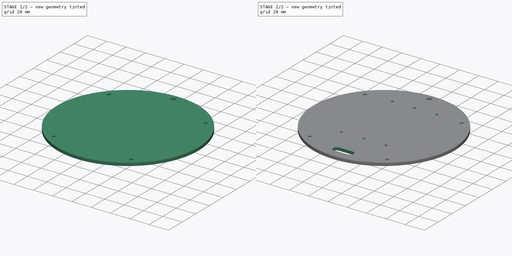
[diagram: build sequence overview — one tinted view per stage of 2, left to right]
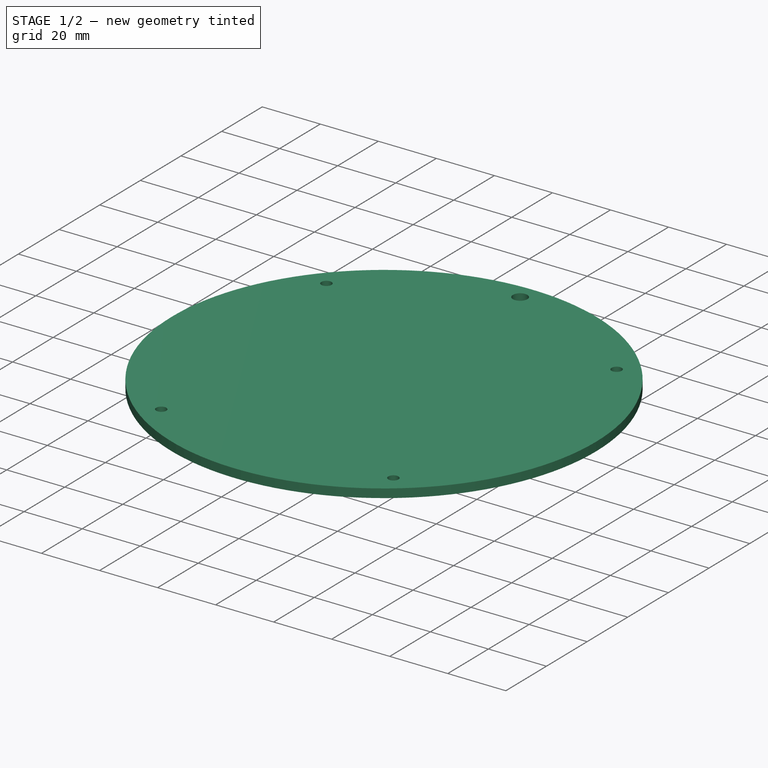
[diagram: stage 1 of 2 — iso view after this stage's code; geometry added in this stage tinted green]
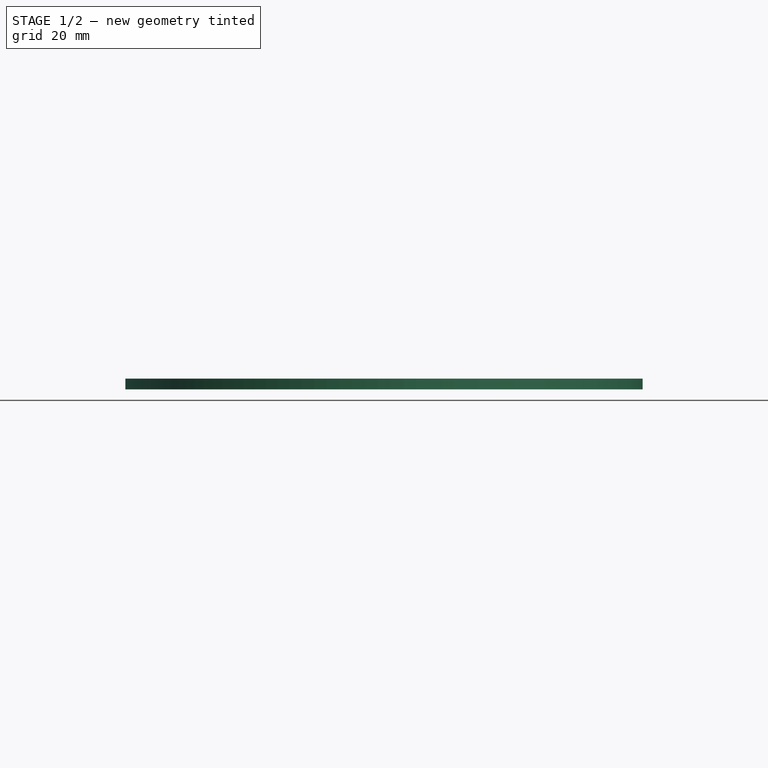
[diagram: stage 1 of 2 — front view after this stage's code; geometry added in this stage tinted green]
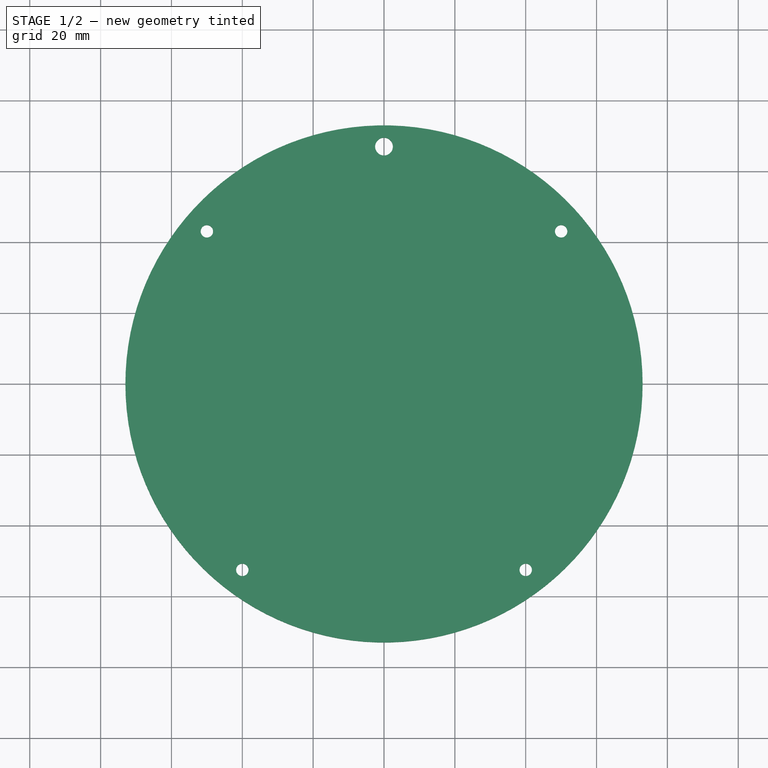
[diagram: stage 1 of 2 — top view after this stage's code; geometry added in this stage tinted green]
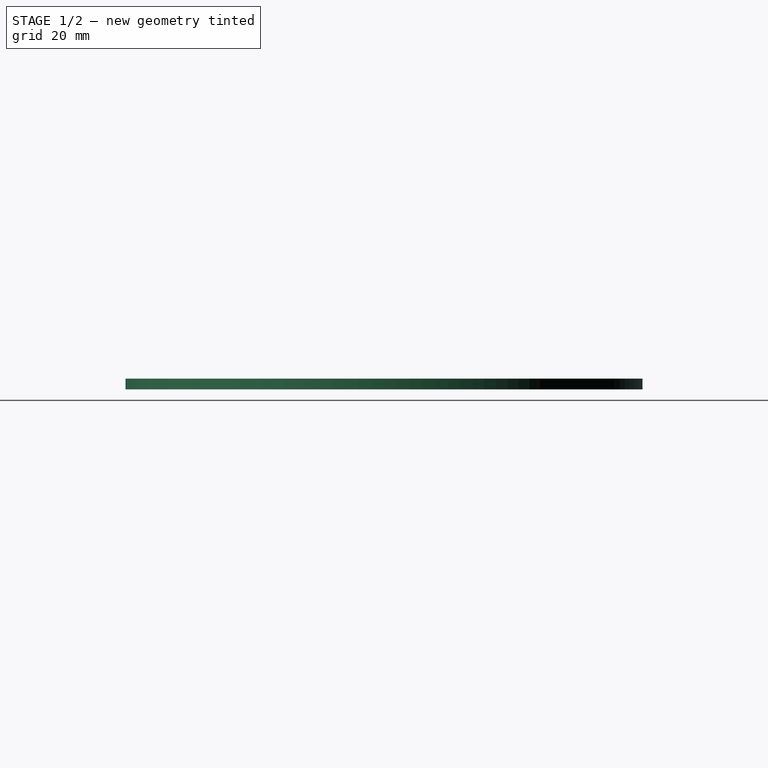
[diagram: stage 1 of 2 — right view after this stage's code; geometry added in this stage tinted green]
FCSTD DOCUMENT  (FreeCAD 0.17R13541 (Git))
Label: AB_battery-plate
License: All rights reserved
LicenseURL: http://en.wikipedia.org/wiki/All_rights_reserved
objects: Sketcher::SketchObject×3, PartDesign::Pocket×2, PartDesign::Pad×1, TechDraw::DrawSVGTemplate×1, PartDesign::Body×1, TechDraw::DrawViewPart×1, TechDraw::DrawPage×1
note: 10 computed .brp shape members not serialized (recipe doc carries the construction recipe); baked Part::Feature solids carry a one-line shape summary decoded from their .brp

FEATURE [Sketcher::SketchObject] Sketch
  MapMode = 5
  Support = -> [XY_Plane]
  sketch-geometry (2):
    g0: Circle CenterX=0 CenterY=0 CenterZ=0 NormalX=0 NormalY=0 NormalZ=1 AngleXU=0 Radius=73
    g1: Circle CenterX=0 CenterY=67 CenterZ=0 NormalX=0 NormalY=0 NormalZ=1 AngleXU=0 Radius=2.5
  constraints (4):
    c: Radius(g0) = 73
    c: PointOnObject(g1,g-2)
    c: Radius(g1) = 2.5
    c: DistanceY(g1) = 67
FEATURE [PartDesign::Pad] Pad
  Length = 3
  Length2 = 100
  Profile = -> Sketch
  Type = 0
FEATURE [TechDraw::DrawSVGTemplate] Template
  Height = 210
  Orientation = 1
  Width = 297
FEATURE [Sketcher::SketchObject] Sketch002
  MapMode = 5
  Placement = pos=(0,0,3) rot=(0,0,1;0rad)
  Support = -> [Pad]
  sketch-geometry (8):
    g0: Circle [constr] CenterX=0 CenterY=0 CenterZ=0 NormalX=0 NormalY=0 NormalZ=1 AngleXU=0 Radius=66
    g1: Circle CenterX=-40 CenterY=-52.4976 CenterZ=0 NormalX=0 NormalY=0 NormalZ=1 AngleXU=0 Radius=1.75
    g2: Circle CenterX=40 CenterY=-52.4976 CenterZ=0 NormalX=0 NormalY=0 NormalZ=1 AngleXU=0 Radius=1.75
    g3: Circle CenterX=-50 CenterY=43.0813 CenterZ=0 NormalX=0 NormalY=0 NormalZ=1 AngleXU=0 Radius=1.75
    g4: Circle CenterX=50 CenterY=43.0813 CenterZ=0 NormalX=0 NormalY=0 NormalZ=1 AngleXU=0 Radius=1.75
    g5: Circle [constr] CenterX=0 CenterY=0 CenterZ=0 NormalX=0 NormalY=0 NormalZ=1 AngleXU=0 Radius=71
    g6: Circle [constr] CenterX=0 CenterY=0 CenterZ=0 NormalX=0 NormalY=0 NormalZ=1 AngleXU=0 Radius=73
    g7: Circle [constr] CenterX=50 CenterY=43.0813 CenterZ=0 NormalX=0 NormalY=0 NormalZ=1 AngleXU=0 Radius=5
  constraints (20):
    c: Coincident(g0,g-1)
    c: PointOnObject(g1,g0)
    c: PointOnObject(g2,g0)
    c: PointOnObject(g3,g0)
    c: PointOnObject(g4,g0)
    c: Equal(g3,g1)
    c: Equal(g1,g2)
    c: Equal(g2,g4)
    c: Horizontal(g3,g4)
    c: Horizontal(g1,g2)
    c: Radius(g4) = 1.75
    c: DistanceX(g3,g4) = 100
    c: Radius(g0) = 66
    c: DistanceX(g1,g2) = 80
    c: Coincident(g5,g-1)
    c: Coincident(g6,g-1)
    c: Radius(g6) = 73
    c: Radius(g5) = 71
    c: Coincident(g7,g4)
    c: Radius(g7) = 5
FEATURE [PartDesign::Pocket] Pocket
  BaseFeature = -> Pad
  Length = 5
  Length2 = 100
  Profile = -> Sketch002
  Type = 1
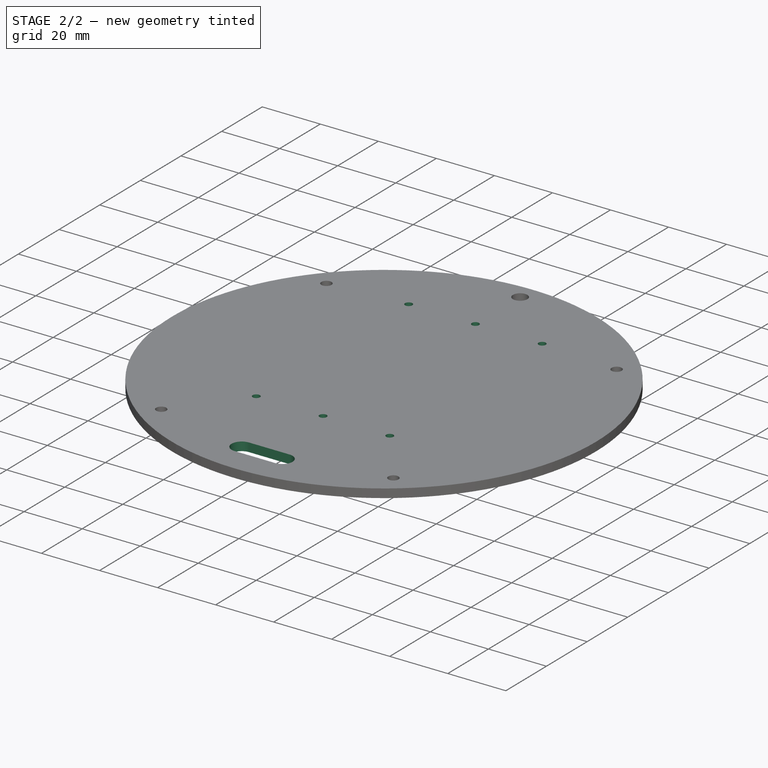
[diagram: stage 2 of 2 — iso view after this stage's code; geometry added in this stage tinted green]
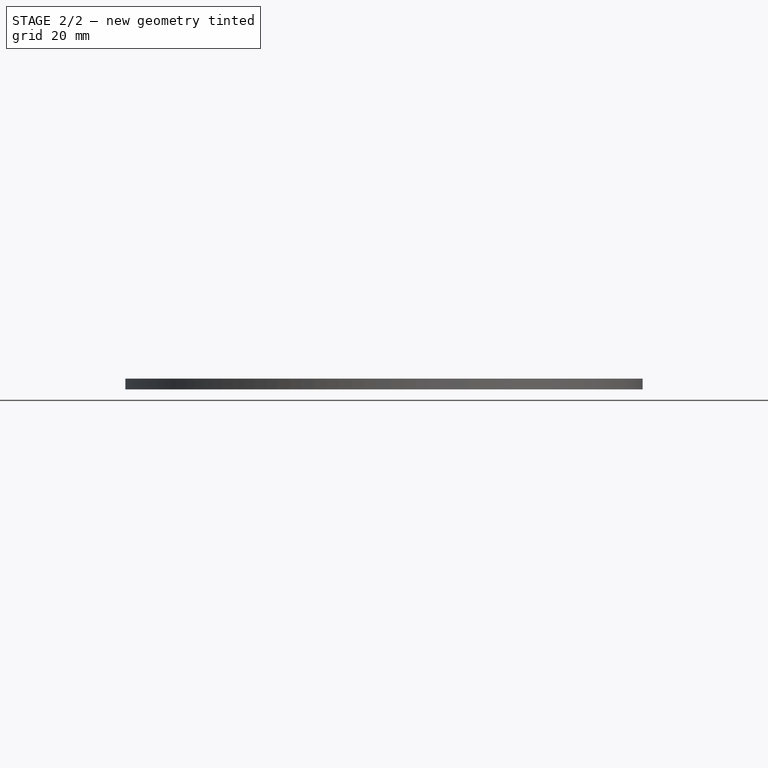
[diagram: stage 2 of 2 — front view after this stage's code; geometry added in this stage tinted green]
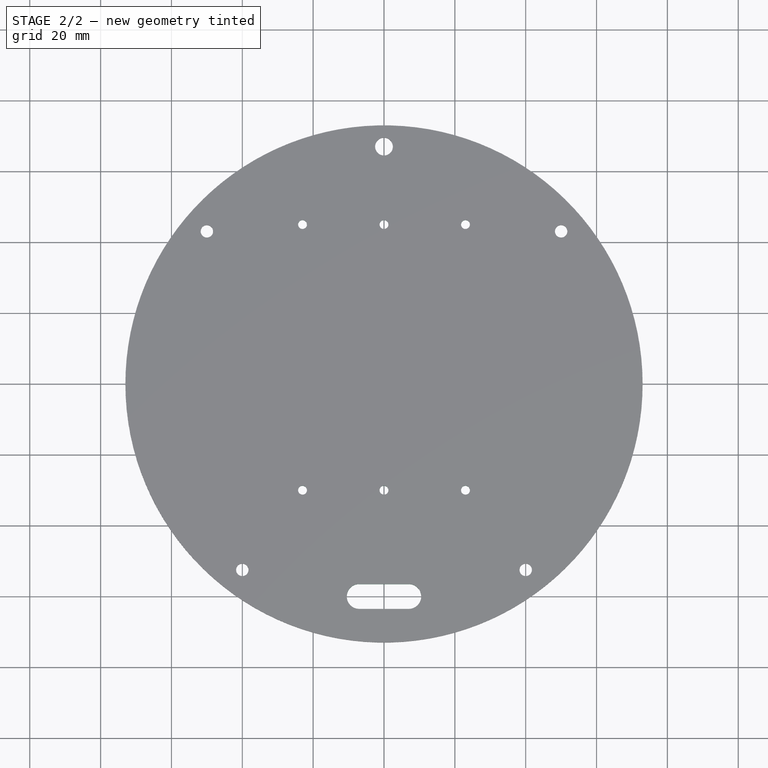
[diagram: stage 2 of 2 — top view after this stage's code; geometry added in this stage tinted green]
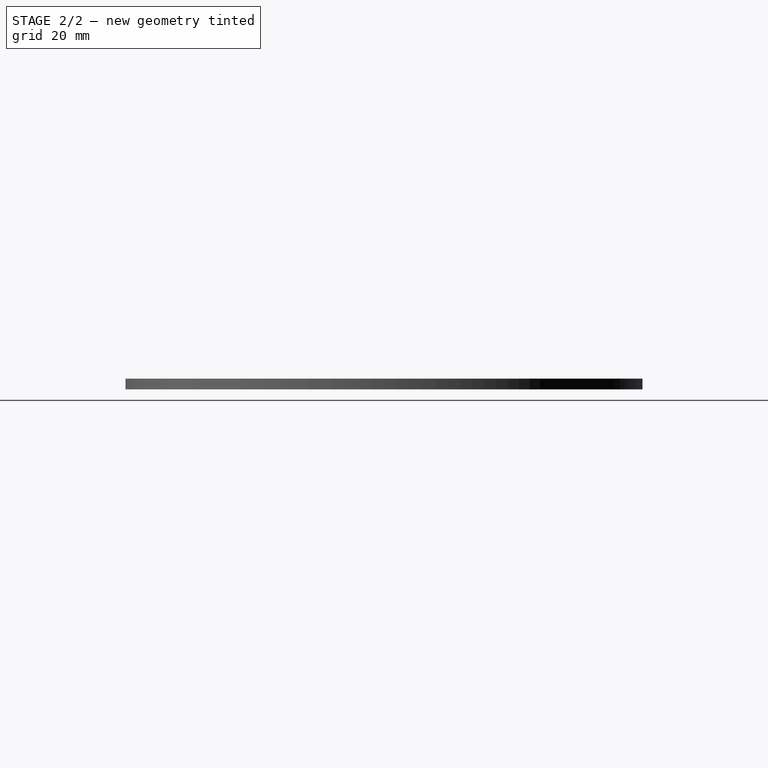
[diagram: stage 2 of 2 — right view after this stage's code; geometry added in this stage tinted green]
FEATURE [Sketcher::SketchObject] Sketch003
  MapMode = 5
  Placement = pos=(0,0,3) rot=(0,0,1;0rad)
  Support = -> [Pocket]
  sketch-geometry (26):
    g0: LineSegment [constr] StartX=-34.1 StartY=59.5 StartZ=0 EndX=-11.9 EndY=59.5 EndZ=0
    g1: LineSegment [constr] StartX=-11.9 StartY=59.5 StartZ=0 EndX=-11.9 EndY=-33.5 EndZ=0
    g2: LineSegment [constr] StartX=-11.9 StartY=-33.5 StartZ=0 EndX=-34.1 EndY=-33.5 EndZ=0
    g3: LineSegment [constr] StartX=-34.1 StartY=-33.5 StartZ=0 EndX=-34.1 EndY=59.5 EndZ=0
    g4: Circle CenterX=-23 CenterY=45 CenterZ=0 NormalX=0 NormalY=0 NormalZ=1 AngleXU=0 Radius=1.25
    g5: Circle CenterX=-23 CenterY=-30 CenterZ=0 NormalX=0 NormalY=0 NormalZ=1 AngleXU=0 Radius=1.25
    g6: LineSegment [constr] StartX=-11.1 StartY=59.5 StartZ=0 EndX=11.1 EndY=59.5 EndZ=0
    g7: LineSegment [constr] StartX=11.1 StartY=59.5 StartZ=0 EndX=11.1 EndY=-33.5 EndZ=0
    g8: LineSegment [constr] StartX=11.1 StartY=-33.5 StartZ=0 EndX=-11.1 EndY=-33.5 EndZ=0
    g9: LineSegment [constr] StartX=-11.1 StartY=-33.5 StartZ=0 EndX=-11.1 EndY=59.5 EndZ=0
    g10: Circle CenterX=0 CenterY=45 CenterZ=0 NormalX=0 NormalY=0 NormalZ=1 AngleXU=0 Radius=1.25
    g11: Circle CenterX=0 CenterY=-30 CenterZ=0 NormalX=0 NormalY=0 NormalZ=1 AngleXU=0 Radius=1.25
    g12: LineSegment [constr] StartX=11.9 StartY=59.5 StartZ=0 EndX=34.1 EndY=59.5 EndZ=0
    g13: LineSegment [constr] StartX=34.1 StartY=59.5 StartZ=0 EndX=34.1 EndY=-33.5 EndZ=0
    g14: LineSegment [constr] StartX=34.1 StartY=-33.5 StartZ=0 EndX=11.9 EndY=-33.5 EndZ=0
    g15: LineSegment [constr] StartX=11.9 StartY=-33.5 StartZ=0 EndX=11.9 EndY=59.5 EndZ=0
    g16: Circle CenterX=23 CenterY=45 CenterZ=0 NormalX=0 NormalY=0 NormalZ=1 AngleXU=0 Radius=1.25
    g17: Circle CenterX=23 CenterY=-30 CenterZ=0 NormalX=0 NormalY=0 NormalZ=1 AngleXU=0 Radius=1.25
    g18: ArcOfCircle CenterX=-7 CenterY=-60 CenterZ=0 NormalX=0 NormalY=0 NormalZ=1 AngleXU=0 Radius=3.5 StartAngle=1.5708 EndAngle=4.71239
    g19: ArcOfCircle CenterX=7 CenterY=-60 CenterZ=0 NormalX=0 NormalY=0 NormalZ=1 AngleXU=0 Radius=3.5 StartAngle=4.71239 EndAngle=7.85398
    g20: LineSegment StartX=-7 StartY=-63.5 StartZ=0 EndX=7 EndY=-63.5 EndZ=0
    g21: LineSegment StartX=-7 StartY=-56.5 StartZ=0 EndX=7 EndY=-56.5 EndZ=0
    g22: LineSegment [constr] StartX=-42.6489 StartY=8.5474 StartZ=0 EndX=43.3511 EndY=8.5474 EndZ=0
    g23: LineSegment [constr] StartX=43.3511 StartY=8.5474 StartZ=0 EndX=43.3511 EndY=-48.4526 EndZ=0
    g24: LineSegment [constr] StartX=43.3511 StartY=-48.4526 StartZ=0 EndX=-42.6489 EndY=-48.4526 EndZ=0
    g25: LineSegment [constr] StartX=-42.6489 StartY=-48.4526 StartZ=0 EndX=-42.6489 EndY=8.5474 EndZ=0
  constraints (75):
    c: Coincident(g0,g1)
    c: Coincident(g1,g2)
    c: Coincident(g2,g3)
    c: Coincident(g3,g0)
    c: Horizontal(g0)
    c: Horizontal(g2)
    c: Vertical(g1)
    c: Vertical(g3)
    c: DistanceX(g0,g0) = 22.2
    c: DistanceY(g1,g1) = 93
    c: DistanceX(g4,g0) = 11.1
    c: Radius(g4) = 1.25
    c: Vertical(g4,g5)
    c: Equal(g5,g4)
    c: DistanceY(g5,g4) = 75
    c: Coincident(g6,g7)
    c: Coincident(g7,g8)
    c: Coincident(g8,g9)
    c: Coincident(g9,g6)
    c: Horizontal(g6)
    c: Horizontal(g8)
    c: Vertical(g7)
    c: Vertical(g9)
    c: Equal(g0,g6) = 22.2
    c: Equal(g1,g7) = 93
    c: DistanceX(g10,g6) = 11.1
    c: Equal(g4,g10) = 1.25
    c: Vertical(g10,g11)
    c: Equal(g11,g10)
    c: DistanceY(g11,g10) = 75
    c: Coincident(g12,g13)
    c: Coincident(g13,g14)
    c: Coincident(g14,g15)
    c: Coincident(g15,g12)
    c: Horizontal(g12)
    c: Horizontal(g14)
    c: Vertical(g13)
    c: Vertical(g15)
    c: DistanceX(g16,g12) = 11.1
    c: Vertical(g16,g17)
    c: Equal(g17,g16)
    c: DistanceY(g17,g16) = 75
    c: Equal(g13,g1)
    c: Equal(g2,g8)
    c: Equal(g8,g14)
    c: DistanceY(g5,g1) = -3.5
    c: DistanceY(g7,g11) = 3.5
    c: DistanceY(g13,g17) = 3.5
    c: DistanceX(g5,g11) = 23
    c: Horizontal(g5,g11)
    c: Horizontal(g11,g17)
    c: DistanceX(g11,g17) = 23
    c: PointOnObject(g10,g-2)
    c: DistanceY(g10) = 45
    c: Equal(g4,g16)
    c: Tangent(g18,g21) = 1.5708
    c: Tangent(g18,g20) = -1.5708
    c: Tangent(g20,g19) = -1.5708
    c: Tangent(g21,g19) = 1.5708
    c: Horizontal(g20)
    c: Equal(g18,g19)
    c: DistanceX(g18,g19) = 14
    c: Radius(g19) = 3.5
    c: DistanceX(g19) = 7
    c: DistanceY(g19) = -60
    c: Coincident(g22,g23)
    c: Coincident(g23,g24)
    c: Coincident(g24,g25)
    c: Coincident(g25,g22)
    c: Horizontal(g22)
    c: Horizontal(g24)
    c: Vertical(g23)
    c: Vertical(g25)
    c: DistanceX(g22,g22) = 86
    c: DistanceY(g23,g23) = 57
FEATURE [PartDesign::Pocket] Pocket001
  BaseFeature = -> Pocket
  Length = 5
  Length2 = 100
  Profile = -> Sketch003
  Type = 1
FEATURE [PartDesign::Body] Body
  Group = -> [Sketch,Pad,Sketch002,Pocket,Sketch003,Pocket001]
  Origin = -> Origin
  Tip = -> Pocket001
FEATURE [TechDraw::DrawViewPart] View
  CoarseView = false
  Direction = (0,0,1)
  Focus = 100
  HardHidden = false
  IsoCount = 0
  IsoHidden = false
  IsoVisible = false
  LockPosition = false
  Perspective = false
  Rotation = 0
  ScaleType = 0
  SeamHidden = false
  SeamVisible = false
  SmoothHidden = false
  SmoothVisible = false
  Source = -> [Pocket001]
  X = 148.5
  Y = 105
FEATURE [TechDraw::DrawPage] Page
  KeepUpdated = true
  ProjectionType = 0
  Template = -> Template
  Views = -> [View]
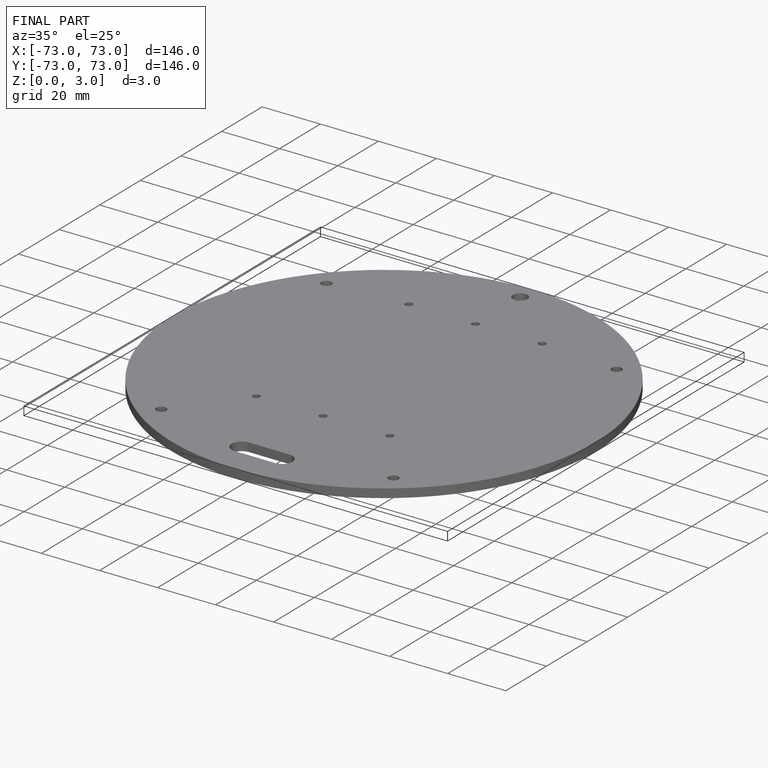
[diagram: finished part — iso view with bounding-box wireframe]
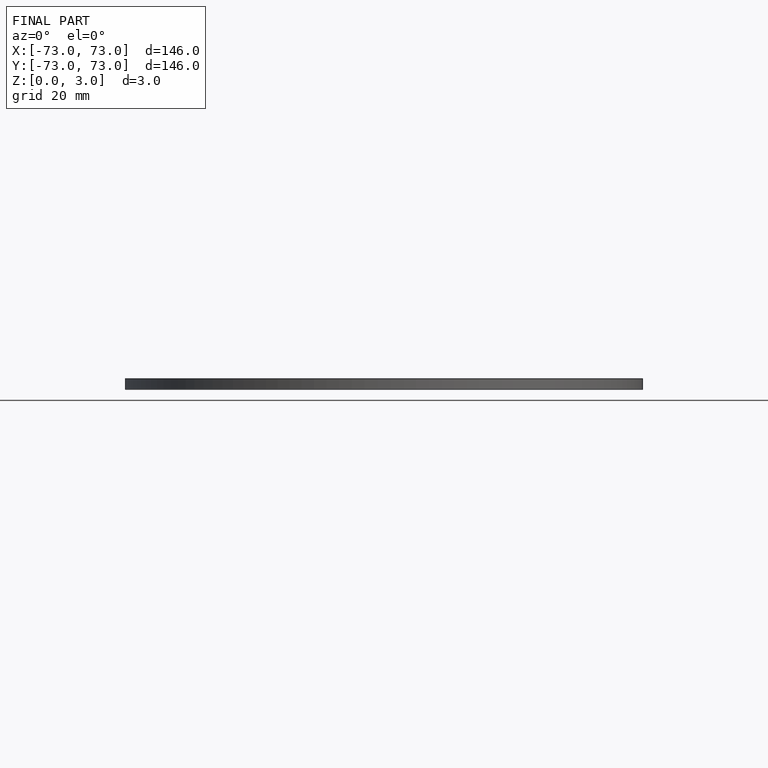
[diagram: finished part — front view with bounding-box wireframe]
